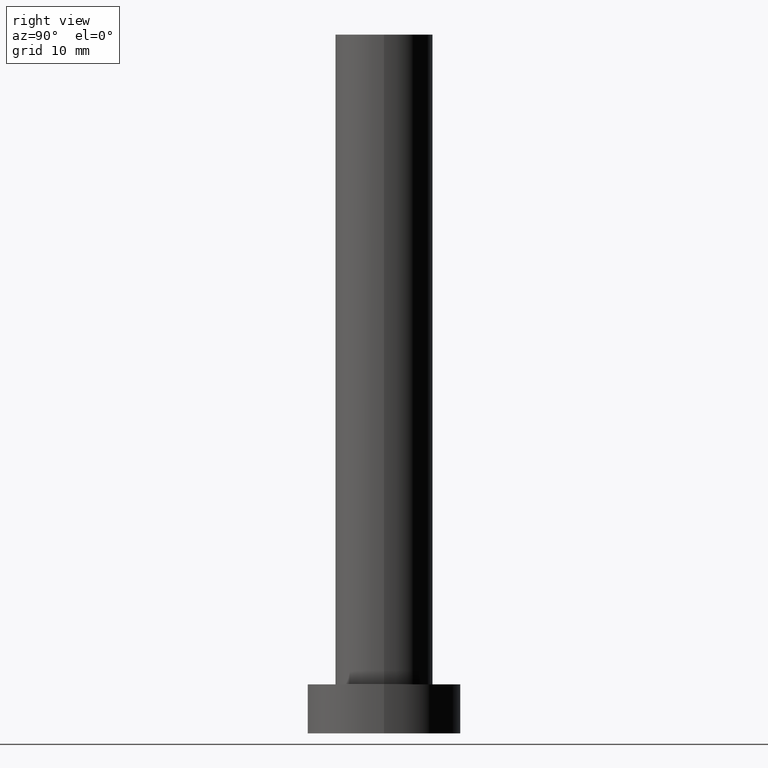
[diagram: clean part render]
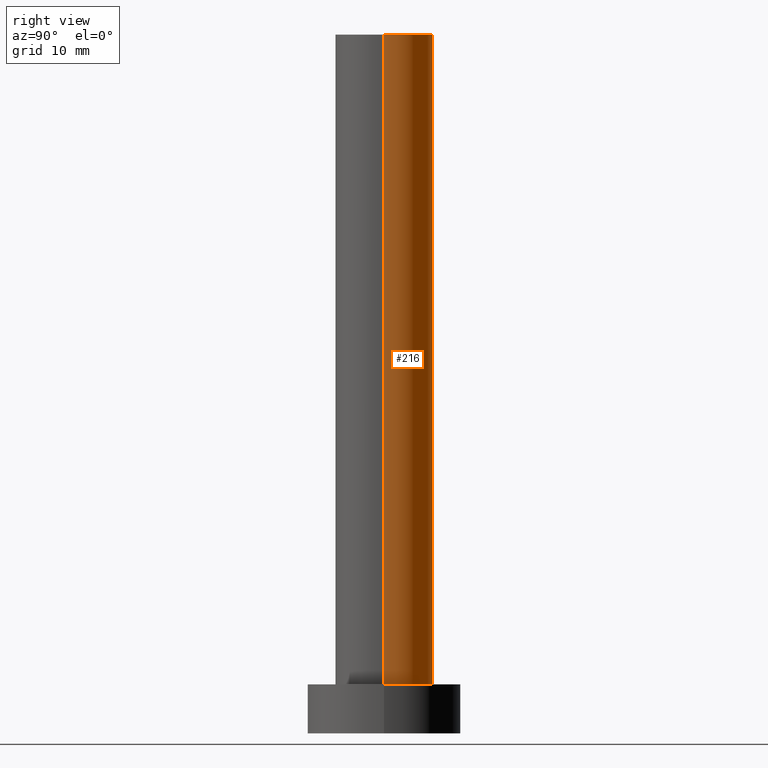
[diagram: same view with one face highlighted and labeled with its STEP entity id]
A machine part, right view. The second image highlights one B-rep face of the part: STEP entity #216.
In plain terms, the highlighted cylindrical surface (partial cylindrical patch) has radius 7 mm, axis along (-0, -0, -1).
Its self-contained STEP definition (entity closure, byte-faithful):
#19 = DIRECTION ( 'NONE',  ( 0.000000000000000000, 0.000000000000000000, 1.000000000000000000 ) ) ;
#24 = VERTEX_POINT ( 'NONE', #247 ) ;
#38 = DIRECTION ( 'NONE',  ( -0.000000000000000000, -0.000000000000000000, -1.000000000000000000 ) ) ;
#39 = CARTESIAN_POINT ( 'NONE',  ( 7.000000000000000000, 8.572527594031471218E-16, 100.0000000000000000 ) ) ;
#41 = DIRECTION ( 'NONE',  ( -1.000000000000000000, 0.000000000000000000, 0.000000000000000000 ) ) ;
#48 = VECTOR ( 'NONE', #197, 1000.000000000000000 ) ;
#61 = CARTESIAN_POINT ( 'NONE',  ( 0.000000000000000000, 0.000000000000000000, 100.0000000000000000 ) ) ;
#62 = EDGE_CURVE ( 'NONE', #24, #90, #112, .T. ) ;
#63 = DIRECTION ( 'NONE',  ( 0.000000000000000000, 0.000000000000000000, 1.000000000000000000 ) ) ;
#67 = ORIENTED_EDGE ( 'NONE', *, *, #242, .T. ) ;
#75 = ORIENTED_EDGE ( 'NONE', *, *, #189, .F. ) ;
#77 = DIRECTION ( 'NONE',  ( 1.000000000000000000, 0.000000000000000000, 0.000000000000000000 ) ) ;
#90 = VERTEX_POINT ( 'NONE', #148 ) ;
#95 = DIRECTION ( 'NONE',  ( 1.000000000000000000, 0.000000000000000000, 0.000000000000000000 ) ) ;
#99 = CYLINDRICAL_SURFACE ( 'NONE', #104, 7.000000000000000000 ) ;
#104 = AXIS2_PLACEMENT_3D ( 'NONE', #61, #38, #41 ) ;
#111 = EDGE_CURVE ( 'NONE', #213, #172, #253, .T. ) ;
#112 = CIRCLE ( 'NONE', #183, 7.000000000000000000 ) ;
#121 = LINE ( 'NONE', #161, #48 ) ;
#134 = CARTESIAN_POINT ( 'NONE',  ( 0.000000000000000000, 0.000000000000000000, 7.000000000000000000 ) ) ;
#135 = ORIENTED_EDGE ( 'NONE', *, *, #111, .F. ) ;
#139 = FACE_OUTER_BOUND ( 'NONE', #223, .T. ) ;
#148 = CARTESIAN_POINT ( 'NONE',  ( -7.000000000000000000, 0.000000000000000000, 7.000000000000000000 ) ) ;
#157 = LINE ( 'NONE', #235, #214 ) ;
#161 = CARTESIAN_POINT ( 'NONE',  ( 7.000000000000000000, 8.572527594031471218E-16, 100.0000000000000000 ) ) ;
#162 = DIRECTION ( 'NONE',  ( -0.000000000000000000, -0.000000000000000000, -1.000000000000000000 ) ) ;
#172 = VERTEX_POINT ( 'NONE', #234 ) ;
#183 = AXIS2_PLACEMENT_3D ( 'NONE', #134, #19, #95 ) ;
#189 = EDGE_CURVE ( 'NONE', #172, #90, #157, .T. ) ;
#193 = ORIENTED_EDGE ( 'NONE', *, *, #62, .T. ) ;
#197 = DIRECTION ( 'NONE',  ( -0.000000000000000000, -0.000000000000000000, -1.000000000000000000 ) ) ;
#209 = AXIS2_PLACEMENT_3D ( 'NONE', #219, #63, #77 ) ;
#213 = VERTEX_POINT ( 'NONE', #39 ) ;
#214 = VECTOR ( 'NONE', #162, 1000.000000000000000 ) ;
#216 = ADVANCED_FACE ( 'NONE', ( #139 ), #99, .T. ) ;
#219 = CARTESIAN_POINT ( 'NONE',  ( 0.000000000000000000, 0.000000000000000000, 100.0000000000000000 ) ) ;
#223 = EDGE_LOOP ( 'NONE', ( #135, #67, #193, #75 ) ) ;
#234 = CARTESIAN_POINT ( 'NONE',  ( -7.000000000000000000, 0.000000000000000000, 100.0000000000000000 ) ) ;
#235 = CARTESIAN_POINT ( 'NONE',  ( -7.000000000000000000, 0.000000000000000000, 100.0000000000000000 ) ) ;
#242 = EDGE_CURVE ( 'NONE', #213, #24, #121, .T. ) ;
#247 = CARTESIAN_POINT ( 'NONE',  ( 7.000000000000000000, 8.572527594031471218E-16, 7.000000000000000000 ) ) ;
#253 = CIRCLE ( 'NONE', #209, 7.000000000000000000 ) ;